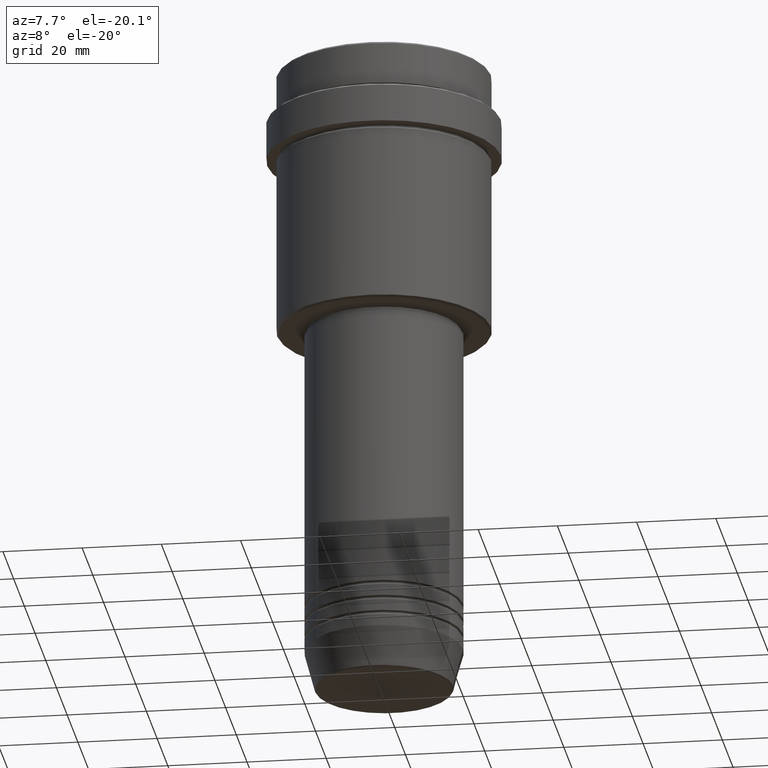
[diagram: clean part render]
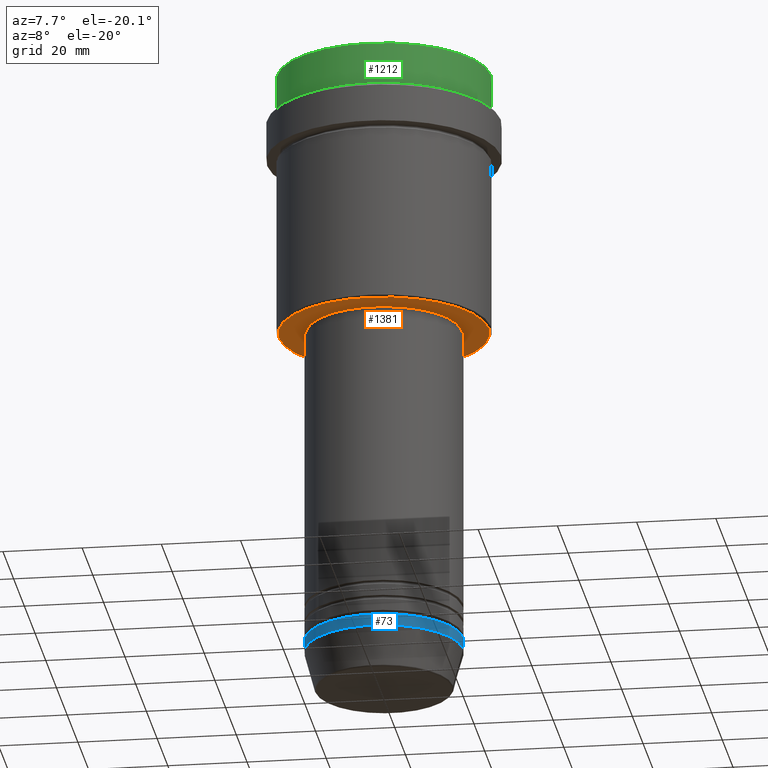
[diagram: same view with three faces highlighted in distinct colors, each labeled with its STEP entity id]
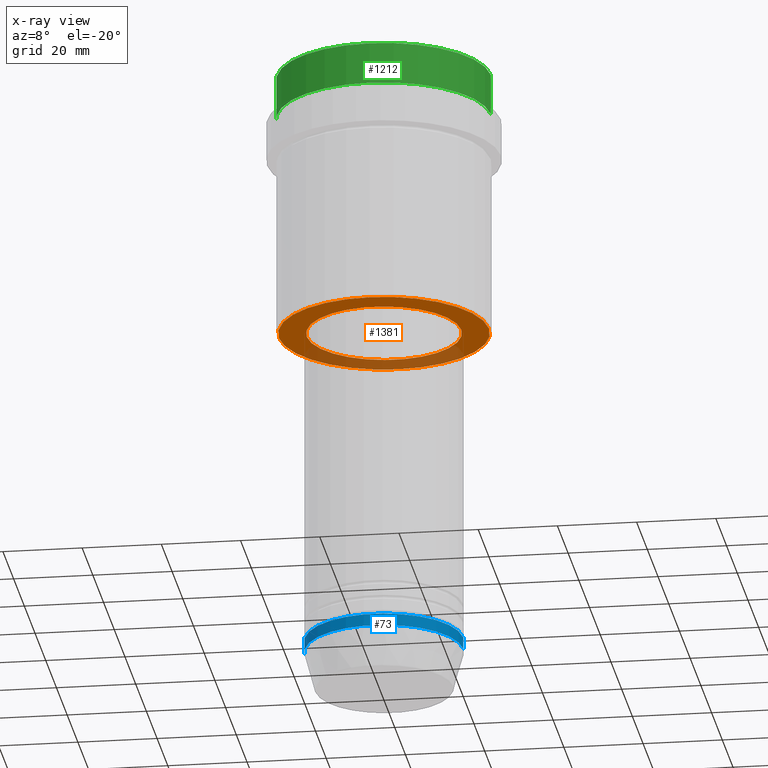
[diagram: x-ray of the same camera — body ghosted, the three highlighted faces saturated]
A machine part, auxiliary view with three faces highlighted in distinct colors.
The next image is the same camera in x-ray (body ghosted, the three faces saturated) — at least one of them is partly hidden behind the body in this view.
Their STEP definitions:

[orange] entity #1381 — the highlighted planar face has unit normal (0, 0, -1).
#45 = CARTESIAN_POINT ( 'NONE',  ( 0.000000000000000000, 0.000000000000000000, -68.00000000000000000 ) ) ;
#61 = DIRECTION ( 'NONE',  ( -0.000000000000000000, -0.000000000000000000, 1.000000000000000000 ) ) ;
#148 = CARTESIAN_POINT ( 'NONE',  ( -26.49999999999999645, 3.275930187719169552E-15, -68.00000000000000000 ) ) ;
#170 = DIRECTION ( 'NONE',  ( -1.000000000000000000, 0.000000000000000000, -0.000000000000000000 ) ) ;
#194 = VERTEX_POINT ( 'NONE', #806 ) ;
#256 = FACE_OUTER_BOUND ( 'NONE', #480, .T. ) ;
#273 = CIRCLE ( 'NONE', #1198, 19.49999999999999289 ) ;
#275 = EDGE_CURVE ( 'NONE', #953, #1265, #1312, .T. ) ;
#358 = DIRECTION ( 'NONE',  ( 1.000000000000000000, 0.000000000000000000, 0.000000000000000000 ) ) ;
#399 = AXIS2_PLACEMENT_3D ( 'NONE', #45, #1234, #562 ) ;
#474 = ORIENTED_EDGE ( 'NONE', *, *, #902, .T. ) ;
#480 = EDGE_LOOP ( 'NONE', ( #623, #474 ) ) ;
#497 = CARTESIAN_POINT ( 'NONE',  ( 0.000000000000000000, 0.000000000000000000, -68.00000000000000000 ) ) ;
#499 = CARTESIAN_POINT ( 'NONE',  ( -19.49999999999999289, 2.388061258337338150E-15, -68.00000000000000000 ) ) ;
#562 = DIRECTION ( 'NONE',  ( -1.000000000000000000, 0.000000000000000000, 0.000000000000000000 ) ) ;
#574 = AXIS2_PLACEMENT_3D ( 'NONE', #497, #841, #1031 ) ;
#623 = ORIENTED_EDGE ( 'NONE', *, *, #1319, .T. ) ;
#632 = ORIENTED_EDGE ( 'NONE', *, *, #275, .T. ) ;
#655 = ORIENTED_EDGE ( 'NONE', *, *, #1369, .T. ) ;
#667 = VERTEX_POINT ( 'NONE', #148 ) ;
#710 = EDGE_LOOP ( 'NONE', ( #632, #655 ) ) ;
#736 = AXIS2_PLACEMENT_3D ( 'NONE', #1201, #751, #845 ) ;
#751 = DIRECTION ( 'NONE',  ( 0.000000000000000000, 0.000000000000000000, -1.000000000000000000 ) ) ;
#806 = CARTESIAN_POINT ( 'NONE',  ( 26.49999999999999645, 0.000000000000000000, -68.00000000000000000 ) ) ;
#822 = FACE_BOUND ( 'NONE', #710, .T. ) ;
#841 = DIRECTION ( 'NONE',  ( -0.000000000000000000, -0.000000000000000000, 1.000000000000000000 ) ) ;
#845 = DIRECTION ( 'NONE',  ( -1.000000000000000000, 0.000000000000000000, 0.000000000000000000 ) ) ;
#884 = AXIS2_PLACEMENT_3D ( 'NONE', #1130, #1118, #170 ) ;
#902 = EDGE_CURVE ( 'NONE', #667, #194, #1057, .T. ) ;
#927 = CARTESIAN_POINT ( 'NONE',  ( 0.000000000000000000, 0.000000000000000000, -68.00000000000000000 ) ) ;
#953 = VERTEX_POINT ( 'NONE', #1092 ) ;
#1014 = CIRCLE ( 'NONE', #399, 26.49999999999999645 ) ;
#1031 = DIRECTION ( 'NONE',  ( 1.000000000000000000, 0.000000000000000000, 0.000000000000000000 ) ) ;
#1057 = CIRCLE ( 'NONE', #736, 26.49999999999999645 ) ;
#1092 = CARTESIAN_POINT ( 'NONE',  ( 19.49999999999999289, 0.000000000000000000, -68.00000000000000000 ) ) ;
#1112 = PLANE ( 'NONE',  #884 ) ;
#1118 = DIRECTION ( 'NONE',  ( 0.000000000000000000, 0.000000000000000000, -1.000000000000000000 ) ) ;
#1130 = CARTESIAN_POINT ( 'NONE',  ( 0.000000000000000000, 27.00000000000000355, -68.00000000000000000 ) ) ;
#1198 = AXIS2_PLACEMENT_3D ( 'NONE', #927, #61, #358 ) ;
#1201 = CARTESIAN_POINT ( 'NONE',  ( 0.000000000000000000, 0.000000000000000000, -68.00000000000000000 ) ) ;
#1234 = DIRECTION ( 'NONE',  ( 0.000000000000000000, 0.000000000000000000, -1.000000000000000000 ) ) ;
#1265 = VERTEX_POINT ( 'NONE', #499 ) ;
#1312 = CIRCLE ( 'NONE', #574, 19.49999999999999289 ) ;
#1319 = EDGE_CURVE ( 'NONE', #194, #667, #1014, .T. ) ;
#1369 = EDGE_CURVE ( 'NONE', #1265, #953, #273, .T. ) ;
#1381 = ADVANCED_FACE ( 'NONE', ( #256, #822 ), #1112, .T. ) ;

[blue] entity #73 — the highlighted cylindrical surface (partial cylindrical patch) has radius 20 mm, axis along (-0, -0, 1).
#38 = CARTESIAN_POINT ( 'NONE',  ( 20.00000000000000000, 0.000000000000000000, -153.0000000000000000 ) ) ;
#51 = VERTEX_POINT ( 'NONE', #990 ) ;
#73 = ADVANCED_FACE ( 'NONE', ( #319 ), #527, .T. ) ;
#80 = VECTOR ( 'NONE', #803, 1000.000000000000000 ) ;
#233 = CARTESIAN_POINT ( 'NONE',  ( 0.000000000000000000, 0.000000000000000000, -150.0000000000000000 ) ) ;
#265 = DIRECTION ( 'NONE',  ( -0.000000000000000000, -0.000000000000000000, 1.000000000000000000 ) ) ;
#319 = FACE_OUTER_BOUND ( 'NONE', #1005, .T. ) ;
#325 = DIRECTION ( 'NONE',  ( -0.000000000000000000, -0.000000000000000000, 1.000000000000000000 ) ) ;
#345 = CARTESIAN_POINT ( 'NONE',  ( 20.00000000000000000, 0.000000000000000000, -150.0000000000000000 ) ) ;
#431 = CARTESIAN_POINT ( 'NONE',  ( 0.000000000000000000, 0.000000000000000000, -153.0000000000000000 ) ) ;
#439 = ORIENTED_EDGE ( 'NONE', *, *, #998, .F. ) ;
#443 = LINE ( 'NONE', #681, #80 ) ;
#461 = LINE ( 'NONE', #1322, #595 ) ;
#482 = AXIS2_PLACEMENT_3D ( 'NONE', #1077, #325, #754 ) ;
#494 = EDGE_CURVE ( 'NONE', #51, #1094, #1373, .T. ) ;
#527 = CYLINDRICAL_SURFACE ( 'NONE', #482, 20.00000000000000000 ) ;
#539 = DIRECTION ( 'NONE',  ( -0.000000000000000000, -0.000000000000000000, 1.000000000000000000 ) ) ;
#595 = VECTOR ( 'NONE', #265, 1000.000000000000000 ) ;
#603 = CARTESIAN_POINT ( 'NONE',  ( -20.00000000000000000, 2.449293598294706513E-15, -150.0000000000000000 ) ) ;
#681 = CARTESIAN_POINT ( 'NONE',  ( -20.00000000000000000, 2.449293598294706513E-15, 0.000000000000000000 ) ) ;
#742 = VERTEX_POINT ( 'NONE', #603 ) ;
#754 = DIRECTION ( 'NONE',  ( 1.000000000000000000, 0.000000000000000000, 0.000000000000000000 ) ) ;
#786 = CIRCLE ( 'NONE', #1103, 20.00000000000000000 ) ;
#793 = ORIENTED_EDGE ( 'NONE', *, *, #494, .T. ) ;
#803 = DIRECTION ( 'NONE',  ( -0.000000000000000000, -0.000000000000000000, 1.000000000000000000 ) ) ;
#895 = DIRECTION ( 'NONE',  ( 1.000000000000000000, 0.000000000000000000, 0.000000000000000000 ) ) ;
#990 = CARTESIAN_POINT ( 'NONE',  ( -20.00000000000000000, 2.449293598294706513E-15, -153.0000000000000000 ) ) ;
#998 = EDGE_CURVE ( 'NONE', #51, #742, #443, .T. ) ;
#1005 = EDGE_LOOP ( 'NONE', ( #439, #793, #1271, #1054 ) ) ;
#1030 = EDGE_CURVE ( 'NONE', #1094, #1072, #461, .T. ) ;
#1054 = ORIENTED_EDGE ( 'NONE', *, *, #1058, .F. ) ;
#1058 = EDGE_CURVE ( 'NONE', #742, #1072, #786, .T. ) ;
#1072 = VERTEX_POINT ( 'NONE', #345 ) ;
#1077 = CARTESIAN_POINT ( 'NONE',  ( 0.000000000000000000, 0.000000000000000000, 0.000000000000000000 ) ) ;
#1094 = VERTEX_POINT ( 'NONE', #38 ) ;
#1103 = AXIS2_PLACEMENT_3D ( 'NONE', #233, #1119, #895 ) ;
#1119 = DIRECTION ( 'NONE',  ( -0.000000000000000000, -0.000000000000000000, 1.000000000000000000 ) ) ;
#1271 = ORIENTED_EDGE ( 'NONE', *, *, #1030, .T. ) ;
#1298 = DIRECTION ( 'NONE',  ( 1.000000000000000000, 0.000000000000000000, 0.000000000000000000 ) ) ;
#1322 = CARTESIAN_POINT ( 'NONE',  ( 20.00000000000000000, 0.000000000000000000, 0.000000000000000000 ) ) ;
#1373 = CIRCLE ( 'NONE', #1399, 20.00000000000000000 ) ;
#1399 = AXIS2_PLACEMENT_3D ( 'NONE', #431, #539, #1298 ) ;

[green] entity #1212 — the highlighted cylindrical surface (partial cylindrical patch) has radius 27 mm, axis along (-0, -0, 1).
#44 = ORIENTED_EDGE ( 'NONE', *, *, #343, .T. ) ;
#86 = DIRECTION ( 'NONE',  ( 0.000000000000000000, 0.000000000000000000, -1.000000000000000000 ) ) ;
#93 = ORIENTED_EDGE ( 'NONE', *, *, #598, .F. ) ;
#178 = VERTEX_POINT ( 'NONE', #577 ) ;
#179 = DIRECTION ( 'NONE',  ( -0.000000000000000000, -0.000000000000000000, 1.000000000000000000 ) ) ;
#249 = EDGE_CURVE ( 'NONE', #1020, #178, #308, .T. ) ;
#257 = CARTESIAN_POINT ( 'NONE',  ( 27.00000000000000355, 0.000000000000000000, -0.5000000000000073275 ) ) ;
#308 = CIRCLE ( 'NONE', #316, 27.00000000000000355 ) ;
#316 = AXIS2_PLACEMENT_3D ( 'NONE', #1261, #86, #708 ) ;
#343 = EDGE_CURVE ( 'NONE', #687, #1393, #1104, .T. ) ;
#349 = VECTOR ( 'NONE', #179, 1000.000000000000000 ) ;
#354 = LINE ( 'NONE', #913, #711 ) ;
#407 = CARTESIAN_POINT ( 'NONE',  ( 0.000000000000000000, 0.000000000000000000, -10.99999999999998757 ) ) ;
#569 = CARTESIAN_POINT ( 'NONE',  ( 27.00000000000000355, 0.000000000000000000, -10.99999999999998757 ) ) ;
#577 = CARTESIAN_POINT ( 'NONE',  ( -27.00000000000000355, 3.306546357697854128E-15, -0.5000000000000073275 ) ) ;
#579 = ORIENTED_EDGE ( 'NONE', *, *, #249, .T. ) ;
#582 = DIRECTION ( 'NONE',  ( -0.000000000000000000, -0.000000000000000000, 1.000000000000000000 ) ) ;
#596 = CARTESIAN_POINT ( 'NONE',  ( -27.00000000000000355, 3.306546357697854128E-15, -10.99999999999998757 ) ) ;
#598 = EDGE_CURVE ( 'NONE', #687, #178, #354, .T. ) ;
#614 = CYLINDRICAL_SURFACE ( 'NONE', #929, 27.00000000000000355 ) ;
#665 = ORIENTED_EDGE ( 'NONE', *, *, #698, .T. ) ;
#687 = VERTEX_POINT ( 'NONE', #596 ) ;
#697 = EDGE_LOOP ( 'NONE', ( #93, #44, #665, #579 ) ) ;
#698 = EDGE_CURVE ( 'NONE', #1393, #1020, #1038, .T. ) ;
#708 = DIRECTION ( 'NONE',  ( 1.000000000000000000, 0.000000000000000000, 0.000000000000000000 ) ) ;
#711 = VECTOR ( 'NONE', #582, 1000.000000000000000 ) ;
#724 = FACE_OUTER_BOUND ( 'NONE', #697, .T. ) ;
#728 = DIRECTION ( 'NONE',  ( -0.000000000000000000, -0.000000000000000000, 1.000000000000000000 ) ) ;
#843 = DIRECTION ( 'NONE',  ( 1.000000000000000000, 0.000000000000000000, 0.000000000000000000 ) ) ;
#913 = CARTESIAN_POINT ( 'NONE',  ( -27.00000000000000355, 3.306546357697854128E-15, 0.000000000000000000 ) ) ;
#929 = AXIS2_PLACEMENT_3D ( 'NONE', #952, #1295, #843 ) ;
#952 = CARTESIAN_POINT ( 'NONE',  ( 0.000000000000000000, 0.000000000000000000, 0.000000000000000000 ) ) ;
#1020 = VERTEX_POINT ( 'NONE', #257 ) ;
#1038 = LINE ( 'NONE', #1268, #349 ) ;
#1104 = CIRCLE ( 'NONE', #1243, 27.00000000000000355 ) ;
#1166 = DIRECTION ( 'NONE',  ( 1.000000000000000000, 0.000000000000000000, 0.000000000000000000 ) ) ;
#1212 = ADVANCED_FACE ( 'NONE', ( #724 ), #614, .T. ) ;
#1243 = AXIS2_PLACEMENT_3D ( 'NONE', #407, #728, #1166 ) ;
#1261 = CARTESIAN_POINT ( 'NONE',  ( 0.000000000000000000, 0.000000000000000000, -0.5000000000000073275 ) ) ;
#1268 = CARTESIAN_POINT ( 'NONE',  ( 27.00000000000000355, 0.000000000000000000, 0.000000000000000000 ) ) ;
#1295 = DIRECTION ( 'NONE',  ( -0.000000000000000000, -0.000000000000000000, 1.000000000000000000 ) ) ;
#1393 = VERTEX_POINT ( 'NONE', #569 ) ;